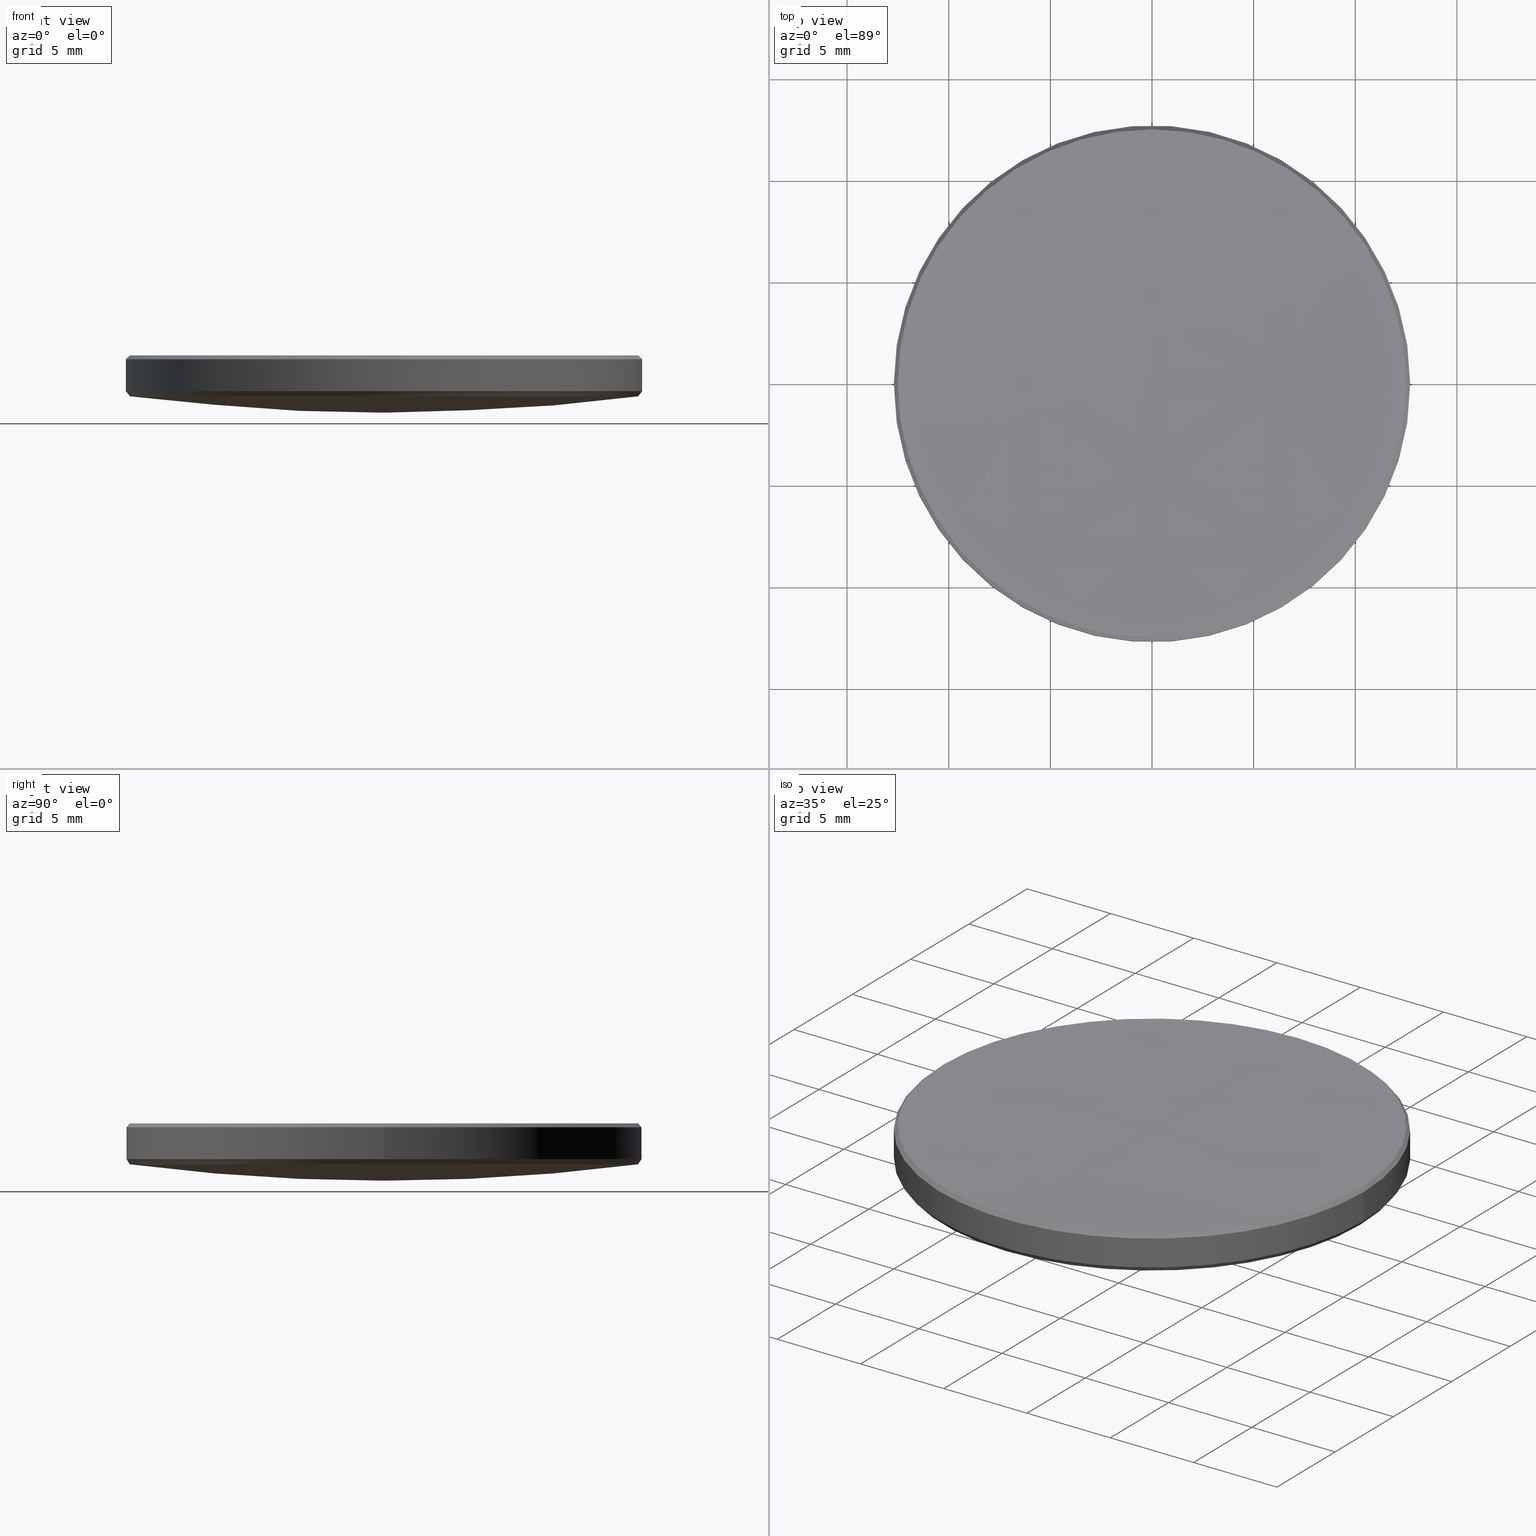
[diagram: canonical four-view strip — front | top / right | iso, engineering-drawing reading convention]
A machine part, canonical four-view strip (front | top / right | iso — engineering-drawing reading convention). The complete STEP part file that produces these views, byte-faithful:
ISO-10303-21;
HEADER;
FILE_DESCRIPTION (( 'STEP AP214' ),
    '1' );
FILE_NAME ('GLM2-025B-300.STEP',
    '2024-08-09T02:46:07',
    ( 'Windows User' ),
    ( 'P R C' ),
    'SwSTEP 2.0',
    'SolidWorks 2022',
    '' );
FILE_SCHEMA (( 'AUTOMOTIVE_DESIGN' ));
ENDSEC;

DATA;
#1 = DIRECTION ( 'NONE',  ( 0.000000000000000000, 0.000000000000000000, -1.000000000000000000 ) ) ;
#2 = UNCERTAINTY_MEASURE_WITH_UNIT (LENGTH_MEASURE( 1.000000000000000082E-05 ), #101, 'distance_accuracy_value', 'NONE');
#3 = EDGE_LOOP ( 'NONE', ( #150, #212, #7, #127 ) ) ;
#4 = ADVANCED_FACE ( 'NONE', ( #91 ), #9, .T. ) ;
#5 = ORIENTED_EDGE ( 'NONE', *, *, #48, .T. ) ;
#6 =( GEOMETRIC_REPRESENTATION_CONTEXT ( 3 ) GLOBAL_UNCERTAINTY_ASSIGNED_CONTEXT ( ( #268 ) ) GLOBAL_UNIT_ASSIGNED_CONTEXT ( ( #21, #169, #17 ) ) REPRESENTATION_CONTEXT ( 'NONE', 'WORKASPACE' ) );
#7 = ORIENTED_EDGE ( 'NONE', *, *, #137, .T. ) ;
#8 = EDGE_LOOP ( 'NONE', ( #35, #164, #102, #100, #77 ) ) ;
#9 = CONICAL_SURFACE ( 'NONE', #167, 12.69999999999999929, 0.6549186247799154703 ) ;
#10 = PRODUCT_DEFINITION_SHAPE ( 'NONE', 'NONE',  #252 ) ;
#11 = VERTEX_POINT ( 'NONE', #67 ) ;
#12 = EDGE_CURVE ( 'NONE', #11, #231, #97, .T. ) ;
#13 = DIRECTION ( 'NONE',  ( 0.000000000000000000, 0.000000000000000000, -1.000000000000000000 ) ) ;
#14 = AXIS2_PLACEMENT_3D ( 'NONE', #222, #47, #303 ) ;
#15 = DIRECTION ( 'NONE',  ( -0.000000000000000000, -0.000000000000000000, -1.000000000000000000 ) ) ;
#16 = CONICAL_SURFACE ( 'NONE', #242, 12.50735029654975961, 0.7853981633977589194 ) ;
#17 =( NAMED_UNIT ( * ) SI_UNIT ( $, .STERADIAN. ) SOLID_ANGLE_UNIT ( ) );
#18 = MECHANICAL_DESIGN_GEOMETRIC_PRESENTATION_REPRESENTATION (  '', ( #306 ), #285 ) ;
#19 = ADVANCED_FACE ( 'NONE', ( #140 ), #133, .T. ) ;
#20 = CIRCLE ( 'NONE', #57, 12.50187621270549165 ) ;
#21 =( LENGTH_UNIT ( ) NAMED_UNIT ( * ) SI_UNIT ( .MILLI., .METRE. ) );
#22 = DIRECTION ( 'NONE',  ( 0.000000000000000000, 0.000000000000000000, -1.000000000000000000 ) ) ;
#23 = DIRECTION ( 'NONE',  ( 1.000000000000000000, 0.000000000000000000, 0.000000000000000000 ) ) ;
#24 = SPHERICAL_SURFACE ( 'NONE', #14, 97.60999999999999943 ) ;
#25 = ADVANCED_FACE ( 'NONE', ( #141 ), #24, .T. ) ;
#26 = DIRECTION ( 'NONE',  ( 0.000000000000000000, 0.000000000000000000, -1.000000000000000000 ) ) ;
#27 = CIRCLE ( 'NONE', #215, 12.50187621270549165 ) ;
#28 = CARTESIAN_POINT ( 'NONE',  ( 0.000000000000000000, 0.000000000000000000, 336.3359598953767886 ) ) ;
#29 = DIRECTION ( 'NONE',  ( 1.000000000000000000, 0.000000000000000000, 0.000000000000000000 ) ) ;
#30 = DIRECTION ( 'NONE',  ( -0.000000000000000000, -0.000000000000000000, 1.000000000000000000 ) ) ;
#31 = ORIENTED_EDGE ( 'NONE', *, *, #38, .T. ) ;
#32 = CARTESIAN_POINT ( 'NONE',  ( 0.000000000000000000, 0.000000000000000000, 5.992649703450315002 ) ) ;
#33 = ORIENTED_EDGE ( 'NONE', *, *, #297, .F. ) ;
#34 = CARTESIAN_POINT ( 'NONE',  ( 12.69999999999999929, 1.555301434917138433E-15, 5.800000000000138378 ) ) ;
#35 = ORIENTED_EDGE ( 'NONE', *, *, #135, .F. ) ;
#36 = SURFACE_STYLE_USAGE ( .BOTH. , #264 ) ;
#37 = ORIENTED_EDGE ( 'NONE', *, *, #172, .T. ) ;
#38 = EDGE_CURVE ( 'NONE', #54, #43, #204, .T. ) ;
#39 = AXIS2_PLACEMENT_3D ( 'NONE', #119, #143, #29 ) ;
#40 = CARTESIAN_POINT ( 'NONE',  ( -12.50187621270549165, 1.543169851819880035E-15, 3.974207420987641015 ) ) ;
#41 = DIRECTION ( 'NONE',  ( -1.000000000000000000, 0.000000000000000000, 0.000000000000000000 ) ) ;
#42 = CARTESIAN_POINT ( 'NONE',  ( 0.000000000000000000, 0.000000000000000000, 4.232182868515954155 ) ) ;
#43 = VERTEX_POINT ( 'NONE', #146 ) ;
#44 = VECTOR ( 'NONE', #81, 1000.000000000000000 ) ;
#45 = EDGE_CURVE ( 'NONE', #236, #11, #20, .T. ) ;
#46 = AXIS2_PLACEMENT_3D ( 'NONE', #128, #63, #266 ) ;
#47 = DIRECTION ( 'NONE',  ( -1.000000000000000000, 0.000000000000000000, 0.000000000000000000 ) ) ;
#48 = EDGE_CURVE ( 'NONE', #60, #108, #94, .T. ) ;
#49 =( NAMED_UNIT ( * ) SI_UNIT ( $, .STERADIAN. ) SOLID_ANGLE_UNIT ( ) );
#50 = DIRECTION ( 'NONE',  ( 0.6090947068628953520, 0.000000000000000000, 0.7930974959433446658 ) ) ;
#51 = AXIS2_PLACEMENT_3D ( 'NONE', #275, #302, #203 ) ;
#52 = DIRECTION ( 'NONE',  ( -0.6090947068628953520, 7.459258831372403609E-17, 0.7930974959433446658 ) ) ;
#53 = CARTESIAN_POINT ( 'NONE',  ( 0.000000000000000000, 0.000000000000000000, 5.800000000000138378 ) ) ;
#54 = VERTEX_POINT ( 'NONE', #211 ) ;
#55 = DIRECTION ( 'NONE',  ( 1.000000000000000000, 0.000000000000000000, 0.000000000000000000 ) ) ;
#56 = ORIENTED_EDGE ( 'NONE', *, *, #288, .F. ) ;
#57 = AXIS2_PLACEMENT_3D ( 'NONE', #271, #13, #261 ) ;
#58 = ORIENTED_EDGE ( 'NONE', *, *, #110, .F. ) ;
#59 = EDGE_CURVE ( 'NONE', #60, #122, #245, .T. ) ;
#60 = VERTEX_POINT ( 'NONE', #234 ) ;
#61 = ORIENTED_EDGE ( 'NONE', *, *, #330, .T. ) ;
#62 = PRODUCT_CONTEXT ( 'NONE', #155, 'mechanical' ) ;
#63 = DIRECTION ( 'NONE',  ( -1.000000000000000000, 1.224646799147353207E-16, 0.000000000000000000 ) ) ;
#64 = AXIS2_PLACEMENT_3D ( 'NONE', #28, #229, #274 ) ;
#65 = ORIENTED_EDGE ( 'NONE', *, *, #201, .F. ) ;
#66 = AXIS2_PLACEMENT_3D ( 'NONE', #107, #111, #154 ) ;
#67 = CARTESIAN_POINT ( 'NONE',  ( 12.50187621270549165, 0.000000000000000000, 3.974207420987641015 ) ) ;
#68 = VECTOR ( 'NONE', #52, 1000.000000000000114 ) ;
#69 = EDGE_CURVE ( 'NONE', #79, #186, #71, .T. ) ;
#70 = CARTESIAN_POINT ( 'NONE',  ( 0.000000000000000000, 0.000000000000000000, 100.7802774329563533 ) ) ;
#71 = LINE ( 'NONE', #250, #106 ) ;
#72 = FILL_AREA_STYLE_COLOUR ( '', #263 ) ;
#73 = ADVANCED_FACE ( 'NONE', ( #254 ), #76, .T. ) ;
#74 = CIRCLE ( 'NONE', #99, 12.50187621270549165 ) ;
#75 = CARTESIAN_POINT ( 'NONE',  ( -12.69999999999999929, 1.555301434917138433E-15, 4.232182868515954155 ) ) ;
#76 = CYLINDRICAL_SURFACE ( 'NONE', #287, 12.69999999999999929 ) ;
#77 = ORIENTED_EDGE ( 'NONE', *, *, #92, .F. ) ;
#78 = ORIENTED_EDGE ( 'NONE', *, *, #207, .T. ) ;
#79 = VERTEX_POINT ( 'NONE', #98 ) ;
#80 = AXIS2_PLACEMENT_3D ( 'NONE', #151, #206, #55 ) ;
#81 = DIRECTION ( 'NONE',  ( -0.000000000000000000, -0.000000000000000000, -1.000000000000000000 ) ) ;
#82 = EDGE_LOOP ( 'NONE', ( #262, #178, #156, #214 ) ) ;
#83 = CIRCLE ( 'NONE', #88, 12.69999999999999929 ) ;
#84 = SURFACE_STYLE_FILL_AREA ( #159 ) ;
#85 = ORIENTED_EDGE ( 'NONE', *, *, #132, .T. ) ;
#86 = APPLICATION_PROTOCOL_DEFINITION ( 'draft international standard', 'automotive_design', 1998, #219 ) ;
#87 = LINE ( 'NONE', #315, #44 ) ;
#88 = AXIS2_PLACEMENT_3D ( 'NONE', #194, #134, #115 ) ;
#89 = CIRCLE ( 'NONE', #39, 12.50735029654974895 ) ;
#90 = EDGE_CURVE ( 'NONE', #54, #122, #237, .T. ) ;
#91 = FACE_OUTER_BOUND ( 'NONE', #233, .T. ) ;
#92 = EDGE_CURVE ( 'NONE', #108, #54, #138, .T. ) ;
#93 = LINE ( 'NONE', #75, #68 ) ;
#94 = CIRCLE ( 'NONE', #198, 330.5799999999999841 ) ;
#95 = DIRECTION ( 'NONE',  ( -0.000000000000000000, -0.000000000000000000, -1.000000000000000000 ) ) ;
#96 = CARTESIAN_POINT ( 'NONE',  ( 0.000000000000000000, 0.000000000000000000, 4.232182868515954155 ) ) ;
#97 = LINE ( 'NONE', #200, #161 ) ;
#98 = CARTESIAN_POINT ( 'NONE',  ( 12.50735029654974895, 1.543505042782786336E-15, 5.992649703450315002 ) ) ;
#99 = AXIS2_PLACEMENT_3D ( 'NONE', #307, #1, #284 ) ;
#100 = ORIENTED_EDGE ( 'NONE', *, *, #38, .F. ) ;
#101 =( LENGTH_UNIT ( ) NAMED_UNIT ( * ) SI_UNIT ( .MILLI., .METRE. ) );
#102 = ORIENTED_EDGE ( 'NONE', *, *, #317, .F. ) ;
#103 = DIRECTION ( 'NONE',  ( 1.000000000000000000, 0.000000000000000000, 0.000000000000000000 ) ) ;
#104 = ORIENTED_EDGE ( 'NONE', *, *, #90, .T. ) ;
#105 = VERTEX_POINT ( 'NONE', #311 ) ;
#106 = VECTOR ( 'NONE', #308, 1000.000000000000114 ) ;
#107 = CARTESIAN_POINT ( 'NONE',  ( 0.000000000000000000, 0.000000000000000000, 4.232182868515954155 ) ) ;
#108 = VERTEX_POINT ( 'NONE', #180 ) ;
#109 = AXIS2_PLACEMENT_3D ( 'NONE', #249, #95, #331 ) ;
#110 = EDGE_CURVE ( 'NONE', #122, #79, #89, .T. ) ;
#111 = DIRECTION ( 'NONE',  ( -0.000000000000000000, -0.000000000000000000, 1.000000000000000000 ) ) ;
#112 = FACE_OUTER_BOUND ( 'NONE', #208, .T. ) ;
#113 = ADVANCED_FACE ( 'NONE', ( #121 ), #205, .T. ) ;
#114 = AXIS2_PLACEMENT_3D ( 'NONE', #117, #224, #327 ) ;
#115 = DIRECTION ( 'NONE',  ( 1.000000000000000000, 0.000000000000000000, 0.000000000000000000 ) ) ;
#116 = FACE_OUTER_BOUND ( 'NONE', #130, .T. ) ;
#117 = CARTESIAN_POINT ( 'NONE',  ( 0.000000000000000000, 0.000000000000000000, 4.232182868515954155 ) ) ;
#118 = SPHERICAL_SURFACE ( 'NONE', #176, 330.5799999999999841 ) ;
#119 = CARTESIAN_POINT ( 'NONE',  ( 0.000000000000000000, 0.000000000000000000, 5.992649703450315002 ) ) ;
#120 = DIRECTION ( 'NONE',  ( 1.000000000000000000, 0.000000000000000000, 0.000000000000000000 ) ) ;
#121 = FACE_OUTER_BOUND ( 'NONE', #8, .T. ) ;
#122 = VERTEX_POINT ( 'NONE', #232 ) ;
#123 = DIRECTION ( 'NONE',  ( -1.000000000000000000, 0.000000000000000000, 0.000000000000000000 ) ) ;
#124 = ORIENTED_EDGE ( 'NONE', *, *, #90, .F. ) ;
#125 = CARTESIAN_POINT ( 'NONE',  ( 0.000000000000000000, 0.000000000000000000, 5.992649703450259047 ) ) ;
#126 = ADVANCED_FACE ( 'NONE', ( #277 ), #118, .F. ) ;
#127 = ORIENTED_EDGE ( 'NONE', *, *, #172, .F. ) ;
#128 = CARTESIAN_POINT ( 'NONE',  ( 0.000000000000000000, 0.000000000000000000, 100.7802774329563533 ) ) ;
#129 = EDGE_LOOP ( 'NONE', ( #265, #5, #291, #104 ) ) ;
#130 = EDGE_LOOP ( 'NONE', ( #65, #78, #37, #61 ) ) ;
#131 = AXIS2_PLACEMENT_3D ( 'NONE', #173, #258, #23 ) ;
#132 = EDGE_CURVE ( 'NONE', #11, #235, #74, .T. ) ;
#133 = CONICAL_SURFACE ( 'NONE', #183, 12.69999999999999929, 0.6549186247799154703 ) ;
#134 = DIRECTION ( 'NONE',  ( 0.000000000000000000, 0.000000000000000000, -1.000000000000000000 ) ) ;
#135 = EDGE_CURVE ( 'NONE', #79, #108, #294, .T. ) ;
#136 = CARTESIAN_POINT ( 'NONE',  ( 12.69999999999999929, 1.555301434917138433E-15, 4.232182868515954155 ) ) ;
#137 = EDGE_CURVE ( 'NONE', #231, #292, #145, .T. ) ;
#138 = CIRCLE ( 'NONE', #131, 12.50735029654974895 ) ;
#139 = CARTESIAN_POINT ( 'NONE',  ( 0.000000000000000000, 0.000000000000000000, 100.7802774329563533 ) ) ;
#140 = FACE_OUTER_BOUND ( 'NONE', #160, .T. ) ;
#141 = FACE_OUTER_BOUND ( 'NONE', #312, .T. ) ;
#142 = DIRECTION ( 'NONE',  ( -1.000000000000000000, 0.000000000000000000, 0.000000000000000000 ) ) ;
#143 = DIRECTION ( 'NONE',  ( -0.000000000000000000, -0.000000000000000000, 1.000000000000000000 ) ) ;
#144 = CARTESIAN_POINT ( 'NONE',  ( 0.000000000000000000, 0.000000000000000000, 3.974207420987641015 ) ) ;
#145 = CIRCLE ( 'NONE', #66, 12.69999999999999929 ) ;
#146 = CARTESIAN_POINT ( 'NONE',  ( -12.69999999999999929, 0.000000000000000000, 5.800000000000138378 ) ) ;
#147 = EDGE_CURVE ( 'NONE', #105, #235, #188, .T. ) ;
#148 =( LENGTH_UNIT ( ) NAMED_UNIT ( * ) SI_UNIT ( .MILLI., .METRE. ) );
#149 = DIRECTION ( 'NONE',  ( 0.000000000000000000, 1.000000000000000000, 0.000000000000000000 ) ) ;
#150 = ORIENTED_EDGE ( 'NONE', *, *, #317, .T. ) ;
#151 = CARTESIAN_POINT ( 'NONE',  ( 0.000000000000000000, 0.000000000000000000, 5.992649703450315002 ) ) ;
#152 = VERTEX_POINT ( 'NONE', #40 ) ;
#153 = ORIENTED_EDGE ( 'NONE', *, *, #12, .F. ) ;
#154 = DIRECTION ( 'NONE',  ( -1.000000000000000000, 0.000000000000000000, 0.000000000000000000 ) ) ;
#155 = APPLICATION_CONTEXT ( 'automotive_design' ) ;
#156 = ORIENTED_EDGE ( 'NONE', *, *, #192, .T. ) ;
#157 = PRESENTATION_LAYER_ASSIGNMENT (  '', '', ( #306 ) ) ;
#158 =( NAMED_UNIT ( * ) SI_UNIT ( $, .STERADIAN. ) SOLID_ANGLE_UNIT ( ) );
#159 = FILL_AREA_STYLE ('',( #322 ) ) ;
#160 = EDGE_LOOP ( 'NONE', ( #56, #314, #259, #153, #210 ) ) ;
#161 = VECTOR ( 'NONE', #50, 1000.000000000000114 ) ;
#162 = SHAPE_DEFINITION_REPRESENTATION ( #10, #248 ) ;
#163 = MECHANICAL_DESIGN_GEOMETRIC_PRESENTATION_REPRESENTATION (  '', ( #290 ), #6 ) ;
#164 = ORIENTED_EDGE ( 'NONE', *, *, #69, .T. ) ;
#165 = CARTESIAN_POINT ( 'NONE',  ( 0.000000000000000000, 0.000000000000000000, 336.3359598953767886 ) ) ;
#166 = ADVANCED_FACE ( 'NONE', ( #112 ), #16, .T. ) ;
#167 = AXIS2_PLACEMENT_3D ( 'NONE', #42, #220, #195 ) ;
#168 = AXIS2_PLACEMENT_3D ( 'NONE', #139, #246, #326 ) ;
#169 =( NAMED_UNIT ( * ) PLANE_ANGLE_UNIT ( ) SI_UNIT ( $, .RADIAN. ) );
#170 = CARTESIAN_POINT ( 'NONE',  ( -12.50735029654975961, 0.000000000000000000, 5.992649703450259047 ) ) ;
#171 =( NAMED_UNIT ( * ) PLANE_ANGLE_UNIT ( ) SI_UNIT ( $, .RADIAN. ) );
#172 = EDGE_CURVE ( 'NONE', #43, #292, #87, .T. ) ;
#173 = CARTESIAN_POINT ( 'NONE',  ( 0.000000000000000000, 0.000000000000000000, 5.992649703450315002 ) ) ;
#174 =( GEOMETRIC_REPRESENTATION_CONTEXT ( 3 ) GLOBAL_UNCERTAINTY_ASSIGNED_CONTEXT ( ( #243 ) ) GLOBAL_UNIT_ASSIGNED_CONTEXT ( ( #148, #171, #49 ) ) REPRESENTATION_CONTEXT ( 'NONE', 'WORKASPACE' ) );
#175 = FILL_AREA_STYLE ('',( #72 ) ) ;
#176 = AXIS2_PLACEMENT_3D ( 'NONE', #230, #225, #149 ) ;
#177 = CARTESIAN_POINT ( 'NONE',  ( 0.000000000000000000, 0.000000000000000000, 10.00000000000000000 ) ) ;
#178 = ORIENTED_EDGE ( 'NONE', *, *, #147, .T. ) ;
#179 = SURFACE_SIDE_STYLE ('',( #280 ) ) ;
#180 = CARTESIAN_POINT ( 'NONE',  ( 0.000000000000000000, 12.50735029655037422, 5.992649703450315002 ) ) ;
#181 = ORIENTED_EDGE ( 'NONE', *, *, #12, .T. ) ;
#182 =( NAMED_UNIT ( * ) PLANE_ANGLE_UNIT ( ) SI_UNIT ( $, .RADIAN. ) );
#183 = AXIS2_PLACEMENT_3D ( 'NONE', #96, #196, #247 ) ;
#184 = CARTESIAN_POINT ( 'NONE',  ( 0.000000000000000000, 0.000000000000000000, 3.974207420987641015 ) ) ;
#185 = EDGE_LOOP ( 'NONE', ( #289, #286, #190, #260 ) ) ;
#186 = VERTEX_POINT ( 'NONE', #34 ) ;
#187 = MANIFOLD_SOLID_BREP ( '����1', #213 ) ;
#188 = CIRCLE ( 'NONE', #46, 97.60999999999999943 ) ;
#189 = PRESENTATION_STYLE_ASSIGNMENT (( #36 ) ) ;
#190 = ORIENTED_EDGE ( 'NONE', *, *, #110, .T. ) ;
#191 = AXIS2_PLACEMENT_3D ( 'NONE', #53, #22, #251 ) ;
#192 = EDGE_CURVE ( 'NONE', #235, #152, #300, .T. ) ;
#193 = LINE ( 'NONE', #272, #226 ) ;
#194 = CARTESIAN_POINT ( 'NONE',  ( 0.000000000000000000, 0.000000000000000000, 5.800000000000138378 ) ) ;
#195 = DIRECTION ( 'NONE',  ( 1.000000000000000000, 0.000000000000000000, 0.000000000000000000 ) ) ;
#196 = DIRECTION ( 'NONE',  ( -0.000000000000000000, -0.000000000000000000, 1.000000000000000000 ) ) ;
#197 = PRODUCT_DEFINITION_CONTEXT ( 'detailed design', #219, 'design' ) ;
#198 = AXIS2_PLACEMENT_3D ( 'NONE', #165, #103, #26 ) ;
#199 = DIRECTION ( 'NONE',  ( 0.000000000000000000, 1.000000000000000000, 0.000000000000000000 ) ) ;
#200 = CARTESIAN_POINT ( 'NONE',  ( 12.69999999999999929, 0.000000000000000000, 4.232182868515954155 ) ) ;
#201 = EDGE_CURVE ( 'NONE', #186, #231, #193, .T. ) ;
#202 = CYLINDRICAL_SURFACE ( 'NONE', #109, 12.69999999999999929 ) ;
#203 = DIRECTION ( 'NONE',  ( -1.224646799147353207E-16, -1.000000000000000000, 0.000000000000000000 ) ) ;
#204 = LINE ( 'NONE', #170, #223 ) ;
#205 = CONICAL_SURFACE ( 'NONE', #279, 12.50735029654975961, 0.7853981633977589194 ) ;
#206 = DIRECTION ( 'NONE',  ( -0.000000000000000000, -0.000000000000000000, 1.000000000000000000 ) ) ;
#207 = EDGE_CURVE ( 'NONE', #186, #43, #83, .T. ) ;
#208 = EDGE_LOOP ( 'NONE', ( #309, #58, #124, #31, #320 ) ) ;
#209 = DIRECTION ( 'NONE',  ( -1.000000000000000000, 0.000000000000000000, 0.000000000000000000 ) ) ;
#210 = ORIENTED_EDGE ( 'NONE', *, *, #45, .F. ) ;
#211 = CARTESIAN_POINT ( 'NONE',  ( -12.50735029654974895, 0.000000000000000000, 5.992649703450315002 ) ) ;
#212 = ORIENTED_EDGE ( 'NONE', *, *, #201, .T. ) ;
#213 = CLOSED_SHELL ( 'NONE', ( #113, #19, #270, #313, #73, #301, #25, #126, #4, #166 ) ) ;
#214 = ORIENTED_EDGE ( 'NONE', *, *, #288, .T. ) ;
#215 = AXIS2_PLACEMENT_3D ( 'NONE', #144, #227, #120 ) ;
#216 = ORIENTED_EDGE ( 'NONE', *, *, #45, .T. ) ;
#217 = AXIS2_PLACEMENT_3D ( 'NONE', #321, #293, #239 ) ;
#218 = DIRECTION ( 'NONE',  ( 1.000000000000000000, 0.000000000000000000, 0.000000000000000000 ) ) ;
#219 = APPLICATION_CONTEXT ( 'automotive_design' ) ;
#220 = DIRECTION ( 'NONE',  ( -0.000000000000000000, -0.000000000000000000, 1.000000000000000000 ) ) ;
#221 = CARTESIAN_POINT ( 'NONE',  ( -12.69999999999999929, 0.000000000000000000, 4.232182868515954155 ) ) ;
#222 = CARTESIAN_POINT ( 'NONE',  ( 0.000000000000000000, 0.000000000000000000, 100.7802774329563533 ) ) ;
#223 = VECTOR ( 'NONE', #278, 1000.000000000000114 ) ;
#224 = DIRECTION ( 'NONE',  ( -0.000000000000000000, -0.000000000000000000, 1.000000000000000000 ) ) ;
#225 = DIRECTION ( 'NONE',  ( -1.000000000000000000, 0.000000000000000000, 0.000000000000000000 ) ) ;
#226 = VECTOR ( 'NONE', #15, 1000.000000000000000 ) ;
#227 = DIRECTION ( 'NONE',  ( 0.000000000000000000, 0.000000000000000000, -1.000000000000000000 ) ) ;
#228 = DIRECTION ( 'NONE',  ( 1.000000000000000000, 0.000000000000000000, 0.000000000000000000 ) ) ;
#229 = DIRECTION ( 'NONE',  ( -1.000000000000000000, 0.000000000000000000, 0.000000000000000000 ) ) ;
#230 = CARTESIAN_POINT ( 'NONE',  ( 0.000000000000000000, 0.000000000000000000, 336.3359598953767886 ) ) ;
#231 = VERTEX_POINT ( 'NONE', #136 ) ;
#232 = CARTESIAN_POINT ( 'NONE',  ( -1.531708650648511547E-15, -12.50735029655037422, 5.992649703450315002 ) ) ;
#233 = EDGE_LOOP ( 'NONE', ( #33, #267, #238, #181, #316 ) ) ;
#234 = CARTESIAN_POINT ( 'NONE',  ( 0.000000000000000000, 2.024218694310659877E-14, 5.755959895376805413 ) ) ;
#235 = VERTEX_POINT ( 'NONE', #325 ) ;
#236 = VERTEX_POINT ( 'NONE', #299 ) ;
#237 = CIRCLE ( 'NONE', #298, 12.50735029654974895 ) ;
#238 = ORIENTED_EDGE ( 'NONE', *, *, #132, .F. ) ;
#239 = DIRECTION ( 'NONE',  ( 1.000000000000000000, 0.000000000000000000, 0.000000000000000000 ) ) ;
#240 = EDGE_CURVE ( 'NONE', #105, #236, #318, .T. ) ;
#241 = DIRECTION ( 'NONE',  ( 0.000000000000000000, 0.000000000000000000, -1.000000000000000000 ) ) ;
#242 = AXIS2_PLACEMENT_3D ( 'NONE', #319, #241, #41 ) ;
#243 = UNCERTAINTY_MEASURE_WITH_UNIT (LENGTH_MEASURE( 1.000000000000000082E-05 ), #148, 'distance_accuracy_value', 'NONE');
#244 = CIRCLE ( 'NONE', #114, 12.69999999999999929 ) ;
#245 = CIRCLE ( 'NONE', #51, 330.5799999999999841 ) ;
#246 = DIRECTION ( 'NONE',  ( 1.000000000000000000, -0.000000000000000000, 0.000000000000000000 ) ) ;
#247 = DIRECTION ( 'NONE',  ( 1.000000000000000000, 0.000000000000000000, 0.000000000000000000 ) ) ;
#248 = ADVANCED_BREP_SHAPE_REPRESENTATION ( 'GLM2-025B-300', ( #187, #217 ), #174 ) ;
#249 = CARTESIAN_POINT ( 'NONE',  ( 0.000000000000000000, 0.000000000000000000, 10.00000000000000000 ) ) ;
#250 = CARTESIAN_POINT ( 'NONE',  ( 12.50735029654975961, 1.531708650648435816E-15, 5.992649703450259047 ) ) ;
#251 = DIRECTION ( 'NONE',  ( 1.000000000000000000, 0.000000000000000000, 0.000000000000000000 ) ) ;
#252 = PRODUCT_DEFINITION ( 'δ֪', '', #276, #197 ) ;
#253 = AXIS2_PLACEMENT_3D ( 'NONE', #70, #142, #199 ) ;
#254 = FACE_OUTER_BOUND ( 'NONE', #3, .T. ) ;
#255 = PRESENTATION_STYLE_ASSIGNMENT (( #310 ) ) ;
#256 = ORIENTED_EDGE ( 'NONE', *, *, #147, .F. ) ;
#257 = SPHERICAL_SURFACE ( 'NONE', #64, 330.5799999999999841 ) ;
#258 = DIRECTION ( 'NONE',  ( -0.000000000000000000, -0.000000000000000000, 1.000000000000000000 ) ) ;
#259 = ORIENTED_EDGE ( 'NONE', *, *, #137, .F. ) ;
#260 = ORIENTED_EDGE ( 'NONE', *, *, #135, .T. ) ;
#261 = DIRECTION ( 'NONE',  ( 1.000000000000000000, 0.000000000000000000, 0.000000000000000000 ) ) ;
#262 = ORIENTED_EDGE ( 'NONE', *, *, #240, .F. ) ;
#263 = COLOUR_RGB ( '',1.000000000000000000, 1.000000000000000000, 1.000000000000000000 ) ;
#264 = SURFACE_SIDE_STYLE ('',( #84 ) ) ;
#265 = ORIENTED_EDGE ( 'NONE', *, *, #59, .F. ) ;
#266 = DIRECTION ( 'NONE',  ( -1.224646799147353207E-16, -1.000000000000000000, 0.000000000000000000 ) ) ;
#267 = ORIENTED_EDGE ( 'NONE', *, *, #192, .F. ) ;
#268 = UNCERTAINTY_MEASURE_WITH_UNIT (LENGTH_MEASURE( 1.000000000000000082E-05 ), #21, 'distance_accuracy_value', 'NONE');
#269 = DIRECTION ( 'NONE',  ( 0.000000000000000000, 0.000000000000000000, -1.000000000000000000 ) ) ;
#270 = ADVANCED_FACE ( 'NONE', ( #296 ), #257, .F. ) ;
#271 = CARTESIAN_POINT ( 'NONE',  ( 0.000000000000000000, 0.000000000000000000, 3.974207420987641015 ) ) ;
#272 = CARTESIAN_POINT ( 'NONE',  ( 12.69999999999999929, 1.555301434917138433E-15, 10.00000000000000000 ) ) ;
#273 = COLOUR_RGB ( '',1.000000000000000000, 1.000000000000000000, 1.000000000000000000 ) ;
#274 = DIRECTION ( 'NONE',  ( 0.000000000000000000, 1.000000000000000000, 0.000000000000000000 ) ) ;
#275 = CARTESIAN_POINT ( 'NONE',  ( 0.000000000000000000, 0.000000000000000000, 336.3359598953767886 ) ) ;
#276 = PRODUCT_DEFINITION_FORMATION_WITH_SPECIFIED_SOURCE ( '�κ�', '', #323, .NOT_KNOWN. ) ;
#277 = FACE_OUTER_BOUND ( 'NONE', #129, .T. ) ;
#278 = DIRECTION ( 'NONE',  ( -0.7071067811867671749, 0.000000000000000000, -0.7071067811863278596 ) ) ;
#279 = AXIS2_PLACEMENT_3D ( 'NONE', #125, #328, #209 ) ;
#280 = SURFACE_STYLE_FILL_AREA ( #175 ) ;
#281 = FACE_OUTER_BOUND ( 'NONE', #82, .T. ) ;
#282 = DIRECTION ( 'NONE',  ( -0.000000000000000000, -0.000000000000000000, -1.000000000000000000 ) ) ;
#283 = ORIENTED_EDGE ( 'NONE', *, *, #240, .T. ) ;
#284 = DIRECTION ( 'NONE',  ( 1.000000000000000000, 0.000000000000000000, 0.000000000000000000 ) ) ;
#285 =( GEOMETRIC_REPRESENTATION_CONTEXT ( 3 ) GLOBAL_UNCERTAINTY_ASSIGNED_CONTEXT ( ( #2 ) ) GLOBAL_UNIT_ASSIGNED_CONTEXT ( ( #101, #182, #158 ) ) REPRESENTATION_CONTEXT ( 'NONE', 'WORKASPACE' ) );
#286 = ORIENTED_EDGE ( 'NONE', *, *, #59, .T. ) ;
#287 = AXIS2_PLACEMENT_3D ( 'NONE', #177, #282, #123 ) ;
#288 = EDGE_CURVE ( 'NONE', #152, #236, #27, .T. ) ;
#289 = ORIENTED_EDGE ( 'NONE', *, *, #48, .F. ) ;
#290 = STYLED_ITEM ( 'NONE', ( #189 ), #187 ) ;
#291 = ORIENTED_EDGE ( 'NONE', *, *, #92, .T. ) ;
#292 = VERTEX_POINT ( 'NONE', #221 ) ;
#293 = DIRECTION ( 'NONE',  ( 0.000000000000000000, 0.000000000000000000, 1.000000000000000000 ) ) ;
#294 = CIRCLE ( 'NONE', #80, 12.50735029654974895 ) ;
#295 = CIRCLE ( 'NONE', #191, 12.69999999999999929 ) ;
#296 = FACE_OUTER_BOUND ( 'NONE', #185, .T. ) ;
#297 = EDGE_CURVE ( 'NONE', #152, #292, #93, .T. ) ;
#298 = AXIS2_PLACEMENT_3D ( 'NONE', #32, #30, #228 ) ;
#299 = CARTESIAN_POINT ( 'NONE',  ( 0.000000000000000000, 12.50187621270551297, 3.974207420987641015 ) ) ;
#300 = CIRCLE ( 'NONE', #324, 12.50187621270549165 ) ;
#301 = ADVANCED_FACE ( 'NONE', ( #116 ), #202, .T. ) ;
#302 = DIRECTION ( 'NONE',  ( -1.000000000000000000, 1.224646799147353207E-16, 0.000000000000000000 ) ) ;
#303 = DIRECTION ( 'NONE',  ( 0.000000000000000000, 1.000000000000000000, 0.000000000000000000 ) ) ;
#304 = APPLICATION_PROTOCOL_DEFINITION ( 'draft international standard', 'automotive_design', 1998, #155 ) ;
#305 = PRODUCT_RELATED_PRODUCT_CATEGORY ( 'part', '', ( #323 ) ) ;
#306 = STYLED_ITEM ( 'NONE', ( #255 ), #248 ) ;
#307 = CARTESIAN_POINT ( 'NONE',  ( 0.000000000000000000, 0.000000000000000000, 3.974207420987641015 ) ) ;
#308 = DIRECTION ( 'NONE',  ( 0.7071067811867671749, 8.659560562357622381E-17, -0.7071067811863278596 ) ) ;
#309 = ORIENTED_EDGE ( 'NONE', *, *, #69, .F. ) ;
#310 = SURFACE_STYLE_USAGE ( .BOTH. , #179 ) ;
#311 = CARTESIAN_POINT ( 'NONE',  ( 0.000000000000000000, 5.976888703238657615E-15, 3.170277432956350339 ) ) ;
#312 = EDGE_LOOP ( 'NONE', ( #256, #283, #216, #85 ) ) ;
#313 = ADVANCED_FACE ( 'NONE', ( #281 ), #332, .T. ) ;
#314 = ORIENTED_EDGE ( 'NONE', *, *, #297, .T. ) ;
#315 = CARTESIAN_POINT ( 'NONE',  ( -12.69999999999999929, 0.000000000000000000, 10.00000000000000000 ) ) ;
#316 = ORIENTED_EDGE ( 'NONE', *, *, #330, .F. ) ;
#317 = EDGE_CURVE ( 'NONE', #43, #186, #295, .T. ) ;
#318 = CIRCLE ( 'NONE', #168, 97.60999999999999943 ) ;
#319 = CARTESIAN_POINT ( 'NONE',  ( 0.000000000000000000, 0.000000000000000000, 5.992649703450259047 ) ) ;
#320 = ORIENTED_EDGE ( 'NONE', *, *, #207, .F. ) ;
#321 = CARTESIAN_POINT ( 'NONE',  ( 0.000000000000000000, 0.000000000000000000, 0.000000000000000000 ) ) ;
#322 = FILL_AREA_STYLE_COLOUR ( '', #273 ) ;
#323 = PRODUCT ( 'GLM2-025B-300', 'GLM2-025B-300', '', ( #62 ) ) ;
#324 = AXIS2_PLACEMENT_3D ( 'NONE', #184, #269, #218 ) ;
#325 = CARTESIAN_POINT ( 'NONE',  ( -1.531038268722624004E-15, -12.50187621270551297, 3.974207420987641015 ) ) ;
#326 = DIRECTION ( 'NONE',  ( 0.000000000000000000, 0.000000000000000000, -1.000000000000000000 ) ) ;
#327 = DIRECTION ( 'NONE',  ( -1.000000000000000000, 0.000000000000000000, 0.000000000000000000 ) ) ;
#328 = DIRECTION ( 'NONE',  ( 0.000000000000000000, 0.000000000000000000, -1.000000000000000000 ) ) ;
#329 = PRESENTATION_LAYER_ASSIGNMENT (  '', '', ( #290 ) ) ;
#330 = EDGE_CURVE ( 'NONE', #292, #231, #244, .T. ) ;
#331 = DIRECTION ( 'NONE',  ( -1.000000000000000000, 0.000000000000000000, 0.000000000000000000 ) ) ;
#332 = SPHERICAL_SURFACE ( 'NONE', #253, 97.60999999999999943 ) ;
ENDSEC;
END-ISO-10303-21;
